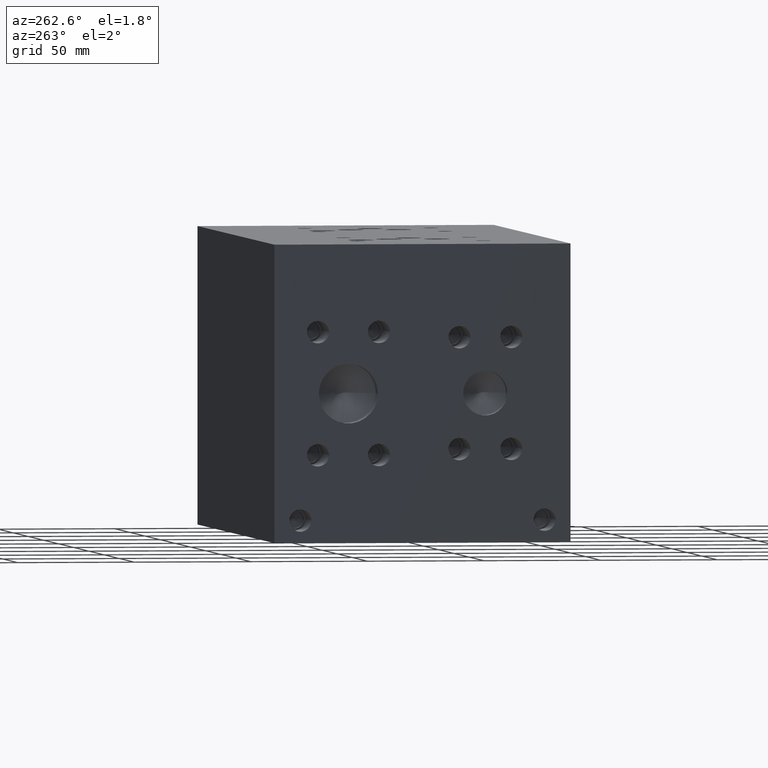
[diagram: clean part render]
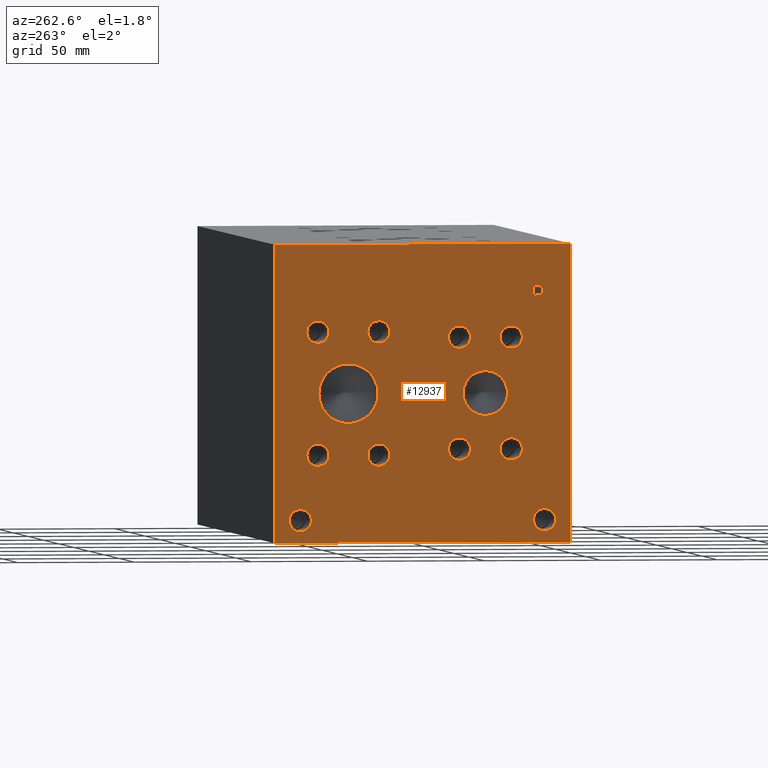
[diagram: same view with one face highlighted and labeled with its STEP entity id]
A machine part, auxiliary view. The second image highlights one B-rep face of the part: STEP entity #12937.
In plain terms, the highlighted planar face has unit normal (-1, 0, 0).
Its self-contained STEP definition (entity closure, byte-faithful):
#211=CIRCLE('',#13662,12.7);
#212=CIRCLE('',#13663,12.7);
#213=CIRCLE('',#13664,4.7625);
#214=CIRCLE('',#13665,4.7625);
#215=CIRCLE('',#13666,4.7625);
#216=CIRCLE('',#13667,4.7625);
#217=CIRCLE('',#13668,4.7625);
#218=CIRCLE('',#13669,4.7625);
#219=CIRCLE('',#13670,4.7625);
#220=CIRCLE('',#13671,4.7625);
#221=CIRCLE('',#13672,4.7625);
#222=CIRCLE('',#13673,4.7625);
#223=CIRCLE('',#13674,4.7625);
#224=CIRCLE('',#13675,4.7625);
#225=CIRCLE('',#13676,4.7625);
#226=CIRCLE('',#13677,4.7625);
#227=CIRCLE('',#13678,4.7625);
#228=CIRCLE('',#13679,4.7625);
#229=CIRCLE('',#13680,9.525);
#230=CIRCLE('',#13681,9.525);
#231=CIRCLE('',#13682,4.7625);
#232=CIRCLE('',#13683,4.7625);
#233=CIRCLE('',#13684,4.7625);
#234=CIRCLE('',#13685,4.7625);
#594=FACE_BOUND('',#1879,.T.);
#595=FACE_BOUND('',#1880,.T.);
#596=FACE_BOUND('',#1881,.T.);
#597=FACE_BOUND('',#1882,.T.);
#598=FACE_BOUND('',#1883,.T.);
#599=FACE_BOUND('',#1884,.T.);
#600=FACE_BOUND('',#1885,.T.);
#601=FACE_BOUND('',#1886,.T.);
#602=FACE_BOUND('',#1887,.T.);
#603=FACE_BOUND('',#1888,.T.);
#604=FACE_BOUND('',#1889,.T.);
#605=FACE_BOUND('',#1890,.T.);
#606=FACE_BOUND('',#1891,.T.);
#607=FACE_BOUND('',#1892,.T.);
#758=PLANE('',#13661);
#1160=FACE_OUTER_BOUND('',#1878,.T.);
#1878=EDGE_LOOP('',(#8789,#8790,#8791,#8792));
#1879=EDGE_LOOP('',(#8793,#8794));
#1880=EDGE_LOOP('',(#8795,#8796));
#1881=EDGE_LOOP('',(#8797,#8798));
#1882=EDGE_LOOP('',(#8799,#8800));
#1883=EDGE_LOOP('',(#8801,#8802));
#1884=EDGE_LOOP('',(#8803,#8804));
#1885=EDGE_LOOP('',(#8805,#8806));
#1886=EDGE_LOOP('',(#8807,#8808));
#1887=EDGE_LOOP('',(#8809,#8810));
#1888=EDGE_LOOP('',(#8811,#8812));
#1889=EDGE_LOOP('',(#8813,#8814));
#1890=EDGE_LOOP('',(#8815,#8816));
#1891=EDGE_LOOP('',(#8817,#8818,#8819,#8820,#8821,#8822,#8823,#8824));
#1892=EDGE_LOOP('',(#8825,#8826,#8827,#8828,#8829,#8830,#8831,#8832,#8833));
#2748=LINE('',#18101,#3943);
#2751=LINE('',#18107,#3946);
#2754=LINE('',#18113,#3949);
#2757=LINE('',#18119,#3952);
#2760=LINE('',#18125,#3955);
#2764=LINE('',#18168,#3959);
#2765=LINE('',#18170,#3960);
#2766=LINE('',#18172,#3961);
#2767=LINE('',#18173,#3962);
#2768=LINE('',#18224,#3963);
#2769=LINE('',#18226,#3964);
#2770=LINE('',#18228,#3965);
#2771=LINE('',#18230,#3966);
#2772=LINE('',#18232,#3967);
#2773=LINE('',#18234,#3968);
#2774=LINE('',#18236,#3969);
#2775=LINE('',#18237,#3970);
#3943=VECTOR('',#14731,10.);
#3946=VECTOR('',#14736,10.);
#3949=VECTOR('',#14741,10.);
#3952=VECTOR('',#14746,10.);
#3955=VECTOR('',#14751,10.);
#3959=VECTOR('',#14759,10.);
#3960=VECTOR('',#14760,10.);
#3961=VECTOR('',#14761,10.);
#3962=VECTOR('',#14762,10.);
#3963=VECTOR('',#14811,10.);
#3964=VECTOR('',#14812,10.);
#3965=VECTOR('',#14813,10.);
#3966=VECTOR('',#14814,10.);
#3967=VECTOR('',#14815,10.);
#3968=VECTOR('',#14816,10.);
#3969=VECTOR('',#14817,10.);
#3970=VECTOR('',#14818,10.);
#5086=B_SPLINE_CURVE_WITH_KNOTS('',2,(#18068,#18069,#18070,#18071),
 .UNSPECIFIED.,.F.,.F.,(3,1,3),(0.,1.,2.),.UNSPECIFIED.);
#5088=B_SPLINE_CURVE_WITH_KNOTS('',2,(#18089,#18090,#18091,#18092),
 .UNSPECIFIED.,.F.,.F.,(3,1,3),(0.,1.,2.),.UNSPECIFIED.);
#5090=B_SPLINE_CURVE_WITH_KNOTS('',2,(#18138,#18139,#18140,#18141),
 .UNSPECIFIED.,.F.,.F.,(3,1,3),(0.,1.,2.),.UNSPECIFIED.);
#5092=B_SPLINE_CURVE_WITH_KNOTS('',2,(#18156,#18157,#18158,#18159),
 .UNSPECIFIED.,.F.,.F.,(3,1,3),(0.,1.,2.),.UNSPECIFIED.);
#5438=VERTEX_POINT('',#18066);
#5439=VERTEX_POINT('',#18067);
#5442=VERTEX_POINT('',#18088);
#5444=VERTEX_POINT('',#18100);
#5446=VERTEX_POINT('',#18106);
#5448=VERTEX_POINT('',#18112);
#5450=VERTEX_POINT('',#18118);
#5452=VERTEX_POINT('',#18124);
#5454=VERTEX_POINT('',#18137);
#5456=VERTEX_POINT('',#18166);
#5457=VERTEX_POINT('',#18167);
#5458=VERTEX_POINT('',#18169);
#5459=VERTEX_POINT('',#18171);
#5460=VERTEX_POINT('',#18174);
#5461=VERTEX_POINT('',#18175);
#5462=VERTEX_POINT('',#18178);
#5463=VERTEX_POINT('',#18179);
#5464=VERTEX_POINT('',#18182);
#5465=VERTEX_POINT('',#18183);
#5466=VERTEX_POINT('',#18186);
#5467=VERTEX_POINT('',#18187);
#5468=VERTEX_POINT('',#18190);
#5469=VERTEX_POINT('',#18191);
#5470=VERTEX_POINT('',#18194);
#5471=VERTEX_POINT('',#18195);
#5472=VERTEX_POINT('',#18198);
#5473=VERTEX_POINT('',#18199);
#5474=VERTEX_POINT('',#18202);
#5475=VERTEX_POINT('',#18203);
#5476=VERTEX_POINT('',#18206);
#5477=VERTEX_POINT('',#18207);
#5478=VERTEX_POINT('',#18210);
#5479=VERTEX_POINT('',#18211);
#5480=VERTEX_POINT('',#18214);
#5481=VERTEX_POINT('',#18215);
#5482=VERTEX_POINT('',#18218);
#5483=VERTEX_POINT('',#18219);
#5484=VERTEX_POINT('',#18222);
#5485=VERTEX_POINT('',#18223);
#5486=VERTEX_POINT('',#18225);
#5487=VERTEX_POINT('',#18227);
#5488=VERTEX_POINT('',#18229);
#5489=VERTEX_POINT('',#18231);
#5490=VERTEX_POINT('',#18233);
#5491=VERTEX_POINT('',#18235);
#6793=EDGE_CURVE('',#5438,#5439,#5086,.T.);
#6797=EDGE_CURVE('',#5442,#5438,#5088,.T.);
#6800=EDGE_CURVE('',#5444,#5442,#2748,.T.);
#6803=EDGE_CURVE('',#5446,#5444,#2751,.T.);
#6806=EDGE_CURVE('',#5448,#5446,#2754,.T.);
#6809=EDGE_CURVE('',#5450,#5448,#2757,.T.);
#6812=EDGE_CURVE('',#5452,#5450,#2760,.T.);
#6815=EDGE_CURVE('',#5454,#5452,#5090,.T.);
#6818=EDGE_CURVE('',#5439,#5454,#5092,.T.);
#6820=EDGE_CURVE('',#5456,#5457,#2764,.T.);
#6821=EDGE_CURVE('',#5457,#5458,#2765,.T.);
#6822=EDGE_CURVE('',#5459,#5458,#2766,.T.);
#6823=EDGE_CURVE('',#5456,#5459,#2767,.T.);
#6824=EDGE_CURVE('',#5460,#5461,#211,.T.);
#6825=EDGE_CURVE('',#5461,#5460,#212,.T.);
#6826=EDGE_CURVE('',#5462,#5463,#213,.T.);
#6827=EDGE_CURVE('',#5463,#5462,#214,.T.);
#6828=EDGE_CURVE('',#5464,#5465,#215,.T.);
#6829=EDGE_CURVE('',#5465,#5464,#216,.T.);
#6830=EDGE_CURVE('',#5466,#5467,#217,.T.);
#6831=EDGE_CURVE('',#5467,#5466,#218,.T.);
#6832=EDGE_CURVE('',#5468,#5469,#219,.T.);
#6833=EDGE_CURVE('',#5469,#5468,#220,.T.);
#6834=EDGE_CURVE('',#5470,#5471,#221,.T.);
#6835=EDGE_CURVE('',#5471,#5470,#222,.T.);
#6836=EDGE_CURVE('',#5472,#5473,#223,.T.);
#6837=EDGE_CURVE('',#5473,#5472,#224,.T.);
#6838=EDGE_CURVE('',#5474,#5475,#225,.T.);
#6839=EDGE_CURVE('',#5475,#5474,#226,.T.);
#6840=EDGE_CURVE('',#5476,#5477,#227,.T.);
#6841=EDGE_CURVE('',#5477,#5476,#228,.T.);
#6842=EDGE_CURVE('',#5478,#5479,#229,.T.);
#6843=EDGE_CURVE('',#5479,#5478,#230,.T.);
#6844=EDGE_CURVE('',#5480,#5481,#231,.T.);
#6845=EDGE_CURVE('',#5481,#5480,#232,.T.);
#6846=EDGE_CURVE('',#5482,#5483,#233,.T.);
#6847=EDGE_CURVE('',#5483,#5482,#234,.T.);
#6848=EDGE_CURVE('',#5484,#5485,#2768,.T.);
#6849=EDGE_CURVE('',#5485,#5486,#2769,.T.);
#6850=EDGE_CURVE('',#5486,#5487,#2770,.T.);
#6851=EDGE_CURVE('',#5487,#5488,#2771,.T.);
#6852=EDGE_CURVE('',#5488,#5489,#2772,.T.);
#6853=EDGE_CURVE('',#5489,#5490,#2773,.T.);
#6854=EDGE_CURVE('',#5490,#5491,#2774,.T.);
#6855=EDGE_CURVE('',#5491,#5484,#2775,.T.);
#8789=ORIENTED_EDGE('',*,*,#6820,.T.);
#8790=ORIENTED_EDGE('',*,*,#6821,.T.);
#8791=ORIENTED_EDGE('',*,*,#6822,.F.);
#8792=ORIENTED_EDGE('',*,*,#6823,.F.);
#8793=ORIENTED_EDGE('',*,*,#6824,.T.);
#8794=ORIENTED_EDGE('',*,*,#6825,.T.);
#8795=ORIENTED_EDGE('',*,*,#6826,.T.);
#8796=ORIENTED_EDGE('',*,*,#6827,.T.);
#8797=ORIENTED_EDGE('',*,*,#6828,.T.);
#8798=ORIENTED_EDGE('',*,*,#6829,.T.);
#8799=ORIENTED_EDGE('',*,*,#6830,.T.);
#8800=ORIENTED_EDGE('',*,*,#6831,.T.);
#8801=ORIENTED_EDGE('',*,*,#6832,.T.);
#8802=ORIENTED_EDGE('',*,*,#6833,.T.);
#8803=ORIENTED_EDGE('',*,*,#6834,.T.);
#8804=ORIENTED_EDGE('',*,*,#6835,.T.);
#8805=ORIENTED_EDGE('',*,*,#6836,.T.);
#8806=ORIENTED_EDGE('',*,*,#6837,.T.);
#8807=ORIENTED_EDGE('',*,*,#6838,.T.);
#8808=ORIENTED_EDGE('',*,*,#6839,.T.);
#8809=ORIENTED_EDGE('',*,*,#6840,.T.);
#8810=ORIENTED_EDGE('',*,*,#6841,.T.);
#8811=ORIENTED_EDGE('',*,*,#6842,.T.);
#8812=ORIENTED_EDGE('',*,*,#6843,.T.);
#8813=ORIENTED_EDGE('',*,*,#6844,.T.);
#8814=ORIENTED_EDGE('',*,*,#6845,.T.);
#8815=ORIENTED_EDGE('',*,*,#6846,.T.);
#8816=ORIENTED_EDGE('',*,*,#6847,.T.);
#8817=ORIENTED_EDGE('',*,*,#6848,.T.);
#8818=ORIENTED_EDGE('',*,*,#6849,.T.);
#8819=ORIENTED_EDGE('',*,*,#6850,.T.);
#8820=ORIENTED_EDGE('',*,*,#6851,.T.);
#8821=ORIENTED_EDGE('',*,*,#6852,.T.);
#8822=ORIENTED_EDGE('',*,*,#6853,.T.);
#8823=ORIENTED_EDGE('',*,*,#6854,.T.);
#8824=ORIENTED_EDGE('',*,*,#6855,.T.);
#8825=ORIENTED_EDGE('',*,*,#6793,.T.);
#8826=ORIENTED_EDGE('',*,*,#6818,.T.);
#8827=ORIENTED_EDGE('',*,*,#6815,.T.);
#8828=ORIENTED_EDGE('',*,*,#6812,.T.);
#8829=ORIENTED_EDGE('',*,*,#6809,.T.);
#8830=ORIENTED_EDGE('',*,*,#6806,.T.);
#8831=ORIENTED_EDGE('',*,*,#6803,.T.);
#8832=ORIENTED_EDGE('',*,*,#6800,.T.);
#8833=ORIENTED_EDGE('',*,*,#6797,.T.);
#12937=ADVANCED_FACE('',(#1160,#594,#595,#596,#597,#598,#599,#600,#601,
#602,#603,#604,#605,#606,#607),#758,.T.);
#13661=AXIS2_PLACEMENT_3D('',#18165,#14757,#14758);
#13662=AXIS2_PLACEMENT_3D('',#18176,#14763,#14764);
#13663=AXIS2_PLACEMENT_3D('',#18177,#14765,#14766);
#13664=AXIS2_PLACEMENT_3D('',#18180,#14767,#14768);
#13665=AXIS2_PLACEMENT_3D('',#18181,#14769,#14770);
#13666=AXIS2_PLACEMENT_3D('',#18184,#14771,#14772);
#13667=AXIS2_PLACEMENT_3D('',#18185,#14773,#14774);
#13668=AXIS2_PLACEMENT_3D('',#18188,#14775,#14776);
#13669=AXIS2_PLACEMENT_3D('',#18189,#14777,#14778);
#13670=AXIS2_PLACEMENT_3D('',#18192,#14779,#14780);
#13671=AXIS2_PLACEMENT_3D('',#18193,#14781,#14782);
#13672=AXIS2_PLACEMENT_3D('',#18196,#14783,#14784);
#13673=AXIS2_PLACEMENT_3D('',#18197,#14785,#14786);
#13674=AXIS2_PLACEMENT_3D('',#18200,#14787,#14788);
#13675=AXIS2_PLACEMENT_3D('',#18201,#14789,#14790);
#13676=AXIS2_PLACEMENT_3D('',#18204,#14791,#14792);
#13677=AXIS2_PLACEMENT_3D('',#18205,#14793,#14794);
#13678=AXIS2_PLACEMENT_3D('',#18208,#14795,#14796);
#13679=AXIS2_PLACEMENT_3D('',#18209,#14797,#14798);
#13680=AXIS2_PLACEMENT_3D('',#18212,#14799,#14800);
#13681=AXIS2_PLACEMENT_3D('',#18213,#14801,#14802);
#13682=AXIS2_PLACEMENT_3D('',#18216,#14803,#14804);
#13683=AXIS2_PLACEMENT_3D('',#18217,#14805,#14806);
#13684=AXIS2_PLACEMENT_3D('',#18220,#14807,#14808);
#13685=AXIS2_PLACEMENT_3D('',#18221,#14809,#14810);
#14731=DIRECTION('',(0.,-1.,0.));
#14736=DIRECTION('',(0.,-3.14708893596576E-15,1.));
#14741=DIRECTION('',(0.,1.,0.));
#14746=DIRECTION('',(0.,3.75218139805001E-15,-1.));
#14751=DIRECTION('',(0.,1.,0.));
#14757=DIRECTION('center_axis',(-1.,0.,0.));
#14758=DIRECTION('ref_axis',(0.,-1.,0.));
#14759=DIRECTION('',(0.,-1.,0.));
#14760=DIRECTION('',(0.,0.,1.));
#14761=DIRECTION('',(0.,-1.,0.));
#14762=DIRECTION('',(0.,0.,1.));
#14763=DIRECTION('center_axis',(1.,0.,0.));
#14764=DIRECTION('ref_axis',(0.,1.,0.));
#14765=DIRECTION('center_axis',(1.,0.,0.));
#14766=DIRECTION('ref_axis',(0.,1.,0.));
#14767=DIRECTION('center_axis',(1.,0.,0.));
#14768=DIRECTION('ref_axis',(0.,1.,0.));
#14769=DIRECTION('center_axis',(1.,0.,0.));
#14770=DIRECTION('ref_axis',(0.,1.,0.));
#14771=DIRECTION('center_axis',(1.,0.,0.));
#14772=DIRECTION('ref_axis',(0.,1.,0.));
#14773=DIRECTION('center_axis',(1.,0.,0.));
#14774=DIRECTION('ref_axis',(0.,1.,0.));
#14775=DIRECTION('center_axis',(1.,0.,0.));
#14776=DIRECTION('ref_axis',(0.,1.,0.));
#14777=DIRECTION('center_axis',(1.,0.,0.));
#14778=DIRECTION('ref_axis',(0.,1.,0.));
#14779=DIRECTION('center_axis',(1.,0.,0.));
#14780=DIRECTION('ref_axis',(0.,1.,0.));
#14781=DIRECTION('center_axis',(1.,0.,0.));
#14782=DIRECTION('ref_axis',(0.,1.,0.));
#14783=DIRECTION('center_axis',(1.,0.,0.));
#14784=DIRECTION('ref_axis',(0.,1.,0.));
#14785=DIRECTION('center_axis',(1.,0.,0.));
#14786=DIRECTION('ref_axis',(0.,1.,0.));
#14787=DIRECTION('center_axis',(1.,0.,0.));
#14788=DIRECTION('ref_axis',(0.,1.,0.));
#14789=DIRECTION('center_axis',(1.,0.,0.));
#14790=DIRECTION('ref_axis',(0.,1.,0.));
#14791=DIRECTION('center_axis',(1.,0.,0.));
#14792=DIRECTION('ref_axis',(0.,1.,0.));
#14793=DIRECTION('center_axis',(1.,0.,0.));
#14794=DIRECTION('ref_axis',(0.,1.,0.));
#14795=DIRECTION('center_axis',(1.,0.,0.));
#14796=DIRECTION('ref_axis',(0.,1.,0.));
#14797=DIRECTION('center_axis',(1.,0.,0.));
#14798=DIRECTION('ref_axis',(0.,1.,0.));
#14799=DIRECTION('center_axis',(1.,0.,0.));
#14800=DIRECTION('ref_axis',(0.,1.,0.));
#14801=DIRECTION('center_axis',(1.,0.,0.));
#14802=DIRECTION('ref_axis',(0.,1.,0.));
#14803=DIRECTION('center_axis',(1.,0.,0.));
#14804=DIRECTION('ref_axis',(0.,1.,0.));
#14805=DIRECTION('center_axis',(1.,0.,0.));
#14806=DIRECTION('ref_axis',(0.,1.,0.));
#14807=DIRECTION('center_axis',(1.,0.,0.));
#14808=DIRECTION('ref_axis',(0.,1.,0.));
#14809=DIRECTION('center_axis',(1.,0.,0.));
#14810=DIRECTION('ref_axis',(0.,1.,0.));
#14811=DIRECTION('',(0.,1.,0.));
#14812=DIRECTION('',(0.,-3.17280044688052E-15,1.));
#14813=DIRECTION('',(0.,1.,8.33818088455555E-15));
#14814=DIRECTION('',(0.,-2.36438827822332E-14,1.));
#14815=DIRECTION('',(0.,-1.,0.));
#14816=DIRECTION('',(0.,2.36438827822327E-14,-1.));
#14817=DIRECTION('',(0.,1.,0.));
#14818=DIRECTION('',(0.,3.17280044688052E-15,-1.));
#18066=CARTESIAN_POINT('',(0.,12.5078327976406,108.747568143971));
#18067=CARTESIAN_POINT('',(0.,11.751390345468,107.229537372604));
#18068=CARTESIAN_POINT('Ctrl Pts',(0.,12.5078327976406,108.747568143971));
#18069=CARTESIAN_POINT('Ctrl Pts',(0.,12.1527679731514,108.505712393956));
#18070=CARTESIAN_POINT('Ctrl Pts',(0.,11.751390345468,107.759561675827));
#18071=CARTESIAN_POINT('Ctrl Pts',(0.,11.751390345468,107.229537372604));
#18088=CARTESIAN_POINT('',(0.,14.1699478456117,109.143799904633));
#18089=CARTESIAN_POINT('Ctrl Pts',(0.,14.1699478456117,109.143799904633));
#18090=CARTESIAN_POINT('Ctrl Pts',(0.,13.6039024732376,109.143799904633));
#18091=CARTESIAN_POINT('Ctrl Pts',(0.,12.8114389519139,108.958548691856));
#18092=CARTESIAN_POINT('Ctrl Pts',(0.,12.5078327976406,108.747568143971));
#18100=CARTESIAN_POINT('',(0.,15.7651666223022,109.143799904633));
#18101=CARTESIAN_POINT('',(0.,71.3825833111511,109.143799904633));
#18106=CARTESIAN_POINT('',(0.,15.7651666223022,102.7938));
#18107=CARTESIAN_POINT('',(0.,15.7651666223024,51.3968999999998));
#18112=CARTESIAN_POINT('',(0.,14.9212444307627,102.7938));
#18113=CARTESIAN_POINT('',(0.,70.9606222153814,102.7938));
#18118=CARTESIAN_POINT('',(0.,14.9212444307627,105.160898829928));
#18119=CARTESIAN_POINT('',(0.,14.9212444307629,52.5804494149637));
#18124=CARTESIAN_POINT('',(0.,14.2059689147628,105.160898829928));
#18125=CARTESIAN_POINT('',(0.,70.6029844573814,105.160898829928));
#18137=CARTESIAN_POINT('',(0.,12.3071439837989,105.81956980869));
#18138=CARTESIAN_POINT('Ctrl Pts',(0.,12.3071439837989,105.81956980869));
#18139=CARTESIAN_POINT('Ctrl Pts',(0.,12.6364794731802,105.495380186331));
#18140=CARTESIAN_POINT('Ctrl Pts',(0.,13.5267144679139,105.160898829928));
#18141=CARTESIAN_POINT('Ctrl Pts',(0.,14.2059689147628,105.160898829928));
#18156=CARTESIAN_POINT('Ctrl Pts',(0.,11.751390345468,107.229537372604));
#18157=CARTESIAN_POINT('Ctrl Pts',(0.,11.751390345468,106.817868010877));
#18158=CARTESIAN_POINT('Ctrl Pts',(0.,12.0447047656982,106.076863159769));
#18159=CARTESIAN_POINT('Ctrl Pts',(0.,12.3071439837989,105.81956980869));
#18165=CARTESIAN_POINT('Origin',(0.,127.,0.));
#18166=CARTESIAN_POINT('',(0.,127.,0.));
#18167=CARTESIAN_POINT('',(0.,0.,0.));
#18168=CARTESIAN_POINT('',(0.,127.,0.));
#18169=CARTESIAN_POINT('',(0.,0.,127.));
#18170=CARTESIAN_POINT('',(0.,0.,0.));
#18171=CARTESIAN_POINT('',(0.,127.,127.));
#18172=CARTESIAN_POINT('',(0.,127.,127.));
#18173=CARTESIAN_POINT('',(0.,127.,0.));
#18174=CARTESIAN_POINT('',(0.,107.95,63.5));
#18175=CARTESIAN_POINT('',(0.,82.55,63.5));
#18176=CARTESIAN_POINT('Origin',(0.,95.25,63.5));
#18177=CARTESIAN_POINT('Origin',(0.,95.25,63.5));
#18178=CARTESIAN_POINT('',(0.,52.3875,87.2998));
#18179=CARTESIAN_POINT('',(0.,42.8625,87.2998));
#18180=CARTESIAN_POINT('Origin',(0.,47.625,87.2998));
#18181=CARTESIAN_POINT('Origin',(0.,47.625,87.2998));
#18182=CARTESIAN_POINT('',(0.,30.1879,39.7002));
#18183=CARTESIAN_POINT('',(0.,20.6629,39.7002));
#18184=CARTESIAN_POINT('Origin',(0.,25.4254,39.7002));
#18185=CARTESIAN_POINT('Origin',(0.,25.4254,39.7002));
#18186=CARTESIAN_POINT('',(0.,113.0935,37.3126));
#18187=CARTESIAN_POINT('',(0.,103.5685,37.3126));
#18188=CARTESIAN_POINT('Origin',(0.,108.331,37.3126));
#18189=CARTESIAN_POINT('Origin',(0.,108.331,37.3126));
#18190=CARTESIAN_POINT('',(0.,86.9315,89.6874));
#18191=CARTESIAN_POINT('',(0.,77.4065,89.6874));
#18192=CARTESIAN_POINT('Origin',(0.,82.169,89.6874));
#18193=CARTESIAN_POINT('Origin',(0.,82.169,89.6874));
#18194=CARTESIAN_POINT('',(0.,113.0935,89.69248));
#18195=CARTESIAN_POINT('',(0.,103.5685,89.69248));
#18196=CARTESIAN_POINT('Origin',(0.,108.331,89.69248));
#18197=CARTESIAN_POINT('Origin',(0.,108.331,89.69248));
#18198=CARTESIAN_POINT('',(0.,86.9315,37.30752));
#18199=CARTESIAN_POINT('',(0.,77.4065,37.30752));
#18200=CARTESIAN_POINT('Origin',(0.,82.169,37.30752));
#18201=CARTESIAN_POINT('Origin',(0.,82.169,37.30752));
#18202=CARTESIAN_POINT('',(0.,30.1879,87.2998));
#18203=CARTESIAN_POINT('',(0.,20.6629,87.2998));
#18204=CARTESIAN_POINT('Origin',(0.,25.4254,87.2998));
#18205=CARTESIAN_POINT('Origin',(0.,25.4254,87.2998));
#18206=CARTESIAN_POINT('',(0.,52.3875,39.7002));
#18207=CARTESIAN_POINT('',(0.,42.8625,39.7002));
#18208=CARTESIAN_POINT('Origin',(0.,47.625,39.7002));
#18209=CARTESIAN_POINT('Origin',(0.,47.625,39.7002));
#18210=CARTESIAN_POINT('',(0.,46.0502,63.5));
#18211=CARTESIAN_POINT('',(0.,27.0002,63.5));
#18212=CARTESIAN_POINT('Origin',(0.,36.5252,63.5));
#18213=CARTESIAN_POINT('Origin',(0.,36.5252,63.5));
#18214=CARTESIAN_POINT('',(0.,120.6373,9.52500000000001));
#18215=CARTESIAN_POINT('',(0.,111.1123,9.52500000000001));
#18216=CARTESIAN_POINT('Origin',(0.,115.8748,9.52500000000001));
#18217=CARTESIAN_POINT('Origin',(0.,115.8748,9.52500000000001));
#18218=CARTESIAN_POINT('',(0.,15.8877,9.52500000000001));
#18219=CARTESIAN_POINT('',(0.,6.3627,9.52500000000001));
#18220=CARTESIAN_POINT('Origin',(0.,11.1252,9.52500000000001));
#18221=CARTESIAN_POINT('Origin',(0.,11.1252,9.52500000000001));
#18222=CARTESIAN_POINT('',(0.,118.214234728547,107.8738));
#18223=CARTESIAN_POINT('',(0.,119.058156920087,107.8738));
#18224=CARTESIAN_POINT('',(0.,122.607117364274,107.8738));
#18225=CARTESIAN_POINT('',(0.,119.058156920087,113.472503319482));
#18226=CARTESIAN_POINT('',(0.,119.058156920087,53.9369));
#18227=CARTESIAN_POINT('',(0.,121.188545867022,113.472503319482));
#18228=CARTESIAN_POINT('',(0.,123.029078460043,113.472503319482));
#18229=CARTESIAN_POINT('',(0.,121.188545867022,114.223799904633));
#18230=CARTESIAN_POINT('',(0.,121.188545867023,56.7362516597407));
#18231=CARTESIAN_POINT('',(0.,116.083845781612,114.223799904633));
#18232=CARTESIAN_POINT('',(0.,124.094272933511,114.223799904633));
#18233=CARTESIAN_POINT('',(0.,116.083845781612,113.472503319482));
#18234=CARTESIAN_POINT('',(0.,116.083845781613,57.1118999523161));
#18235=CARTESIAN_POINT('',(0.,118.214234728547,113.472503319482));
#18236=CARTESIAN_POINT('',(0.,121.541922890806,113.472503319482));
#18237=CARTESIAN_POINT('',(0.,118.214234728547,56.7362516597407));